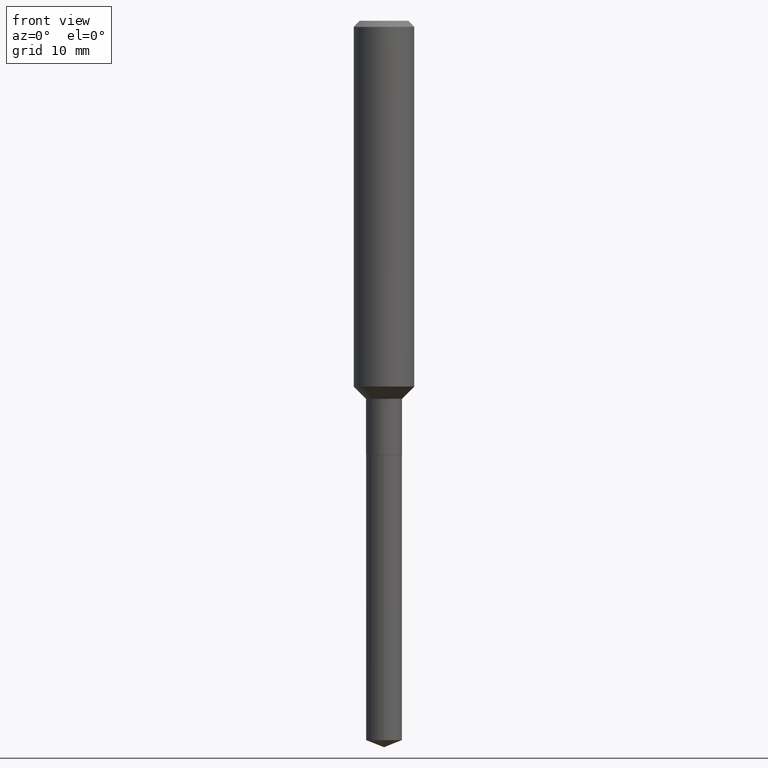
[diagram: clean part render]
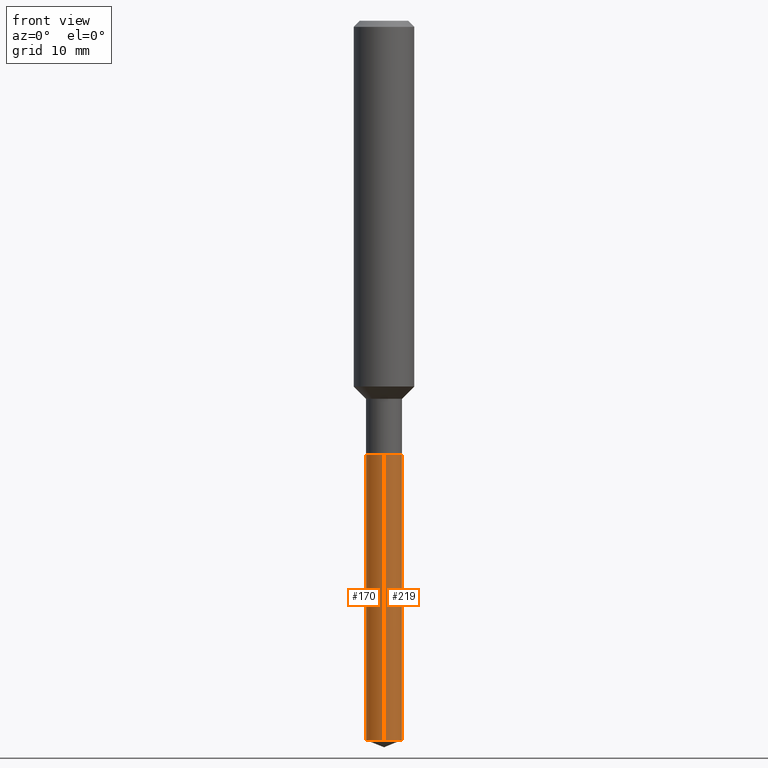
[diagram: same view with one multi-face feature highlighted, each face labeled with its STEP entity id]
A machine part, front view. The highlighted faces form ONE feature: a constant-radius fillet chain: 2 tangent blend faces with common blend radius 1.7856 mm. The faces share edges in the B-rep.
Their STEP definitions:
[1] entity #219 (Cylinder):
#2 = FACE_OUTER_BOUND ( 'NONE', #259, .T. ) ;
#6 = EDGE_CURVE ( 'NONE', #32, #282, #364, .T. ) ;
#21 = ORIENTED_EDGE ( 'NONE', *, *, #84, .T. ) ;
#32 = VERTEX_POINT ( 'NONE', #150 ) ;
#51 = CARTESIAN_POINT ( 'NONE',  ( -4.909022762413031377E-16, -0.07030000000000589944, -1.692899999999999627 ) ) ;
#69 = LINE ( 'NONE', #302, #404 ) ;
#74 = DIRECTION ( 'NONE',  ( -2.436575684604276326E-29, 3.504216795111983695E-15, 1.000000000000000000 ) ) ;
#79 = DIRECTION ( 'NONE',  ( -6.982962677686266711E-15, -1.000000000000000000, 3.885985766236505386E-15 ) ) ;
#84 = EDGE_CURVE ( 'NONE', #282, #455, #241, .T. ) ;
#95 = CARTESIAN_POINT ( 'NONE',  ( 4.139934141990817236E-29, -5.910728758527560286E-15, -1.692899999999999849 ) ) ;
#105 = DIRECTION ( 'NONE',  ( -6.982962677686266711E-15, -1.000000000000000000, 0.000000000000000000 ) ) ;
#117 = CARTESIAN_POINT ( 'NONE',  ( 4.995115432393917570E-16, 0.07029999999999410332, -1.692900000000000071 ) ) ;
#150 = CARTESIAN_POINT ( 'NONE',  ( -4.909022762412758234E-16, -0.07030000000000981297, -2.806908093564269624 ) ) ;
#156 = AXIS2_PLACEMENT_3D ( 'NONE', #371, #295, #105 ) ;
#178 = CARTESIAN_POINT ( 'NONE',  ( 4.995115432394192686E-16, 0.07029999999999410332, -1.692900000000000071 ) ) ;
#206 = CARTESIAN_POINT ( 'NONE',  ( 4.995115432394188741E-16, 0.07029999999999017590, -2.806908093564269624 ) ) ;
#209 = VERTEX_POINT ( 'NONE', #51 ) ;
#219 = ADVANCED_FACE ( 'NONE', ( #2 ), #456, .T. ) ;
#221 = VECTOR ( 'NONE', #459, 39.37007874015748143 ) ;
#241 = LINE ( 'NONE', #117, #221 ) ;
#253 = DIRECTION ( 'NONE',  ( -2.436575684604276326E-29, 3.504216795111983695E-15, 1.000000000000000000 ) ) ;
#259 = EDGE_LOOP ( 'NONE', ( #266, #21, #406, #268 ) ) ;
#261 = AXIS2_PLACEMENT_3D ( 'NONE', #95, #253, #476 ) ;
#266 = ORIENTED_EDGE ( 'NONE', *, *, #6, .T. ) ;
#268 = ORIENTED_EDGE ( 'NONE', *, *, #410, .F. ) ;
#271 = CARTESIAN_POINT ( 'NONE',  ( 4.139934141990817236E-29, -5.910728758527560286E-15, -1.692899999999999849 ) ) ;
#282 = VERTEX_POINT ( 'NONE', #206 ) ;
#295 = DIRECTION ( 'NONE',  ( -2.436575684604276326E-29, 3.504216795111983695E-15, 1.000000000000000000 ) ) ;
#302 = CARTESIAN_POINT ( 'NONE',  ( -4.909022762413032363E-16, -0.07030000000000591331, -1.692899999999999627 ) ) ;
#347 = EDGE_CURVE ( 'NONE', #209, #455, #474, .T. ) ;
#364 = CIRCLE ( 'NONE', #156, 0.07030000000000001525 ) ;
#371 = CARTESIAN_POINT ( 'NONE',  ( 6.854299175221882208E-29, -9.814454629886157032E-15, -2.806908093564269624 ) ) ;
#404 = VECTOR ( 'NONE', #74, 39.37007874015748143 ) ;
#406 = ORIENTED_EDGE ( 'NONE', *, *, #347, .F. ) ;
#410 = EDGE_CURVE ( 'NONE', #32, #209, #69, .T. ) ;
#424 = DIRECTION ( 'NONE',  ( -2.436575684604276326E-29, 3.504216795111983695E-15, 1.000000000000000000 ) ) ;
#431 = AXIS2_PLACEMENT_3D ( 'NONE', #271, #424, #79 ) ;
#455 = VERTEX_POINT ( 'NONE', #178 ) ;
#456 = CYLINDRICAL_SURFACE ( 'NONE', #431, 0.07030000000000000138 ) ;
#459 = DIRECTION ( 'NONE',  ( -2.436575684604276326E-29, 3.504216795111983695E-15, 1.000000000000000000 ) ) ;
#474 = CIRCLE ( 'NONE', #261, 0.07030000000000000138 ) ;
#476 = DIRECTION ( 'NONE',  ( -6.982962677686265133E-15, -1.000000000000000000, 3.885985766236505386E-15 ) ) ;
[2] entity #170 (Cylinder):
#5 = AXIS2_PLACEMENT_3D ( 'NONE', #252, #402, #288 ) ;
#26 = DIRECTION ( 'NONE',  ( -6.982962677686265133E-15, -1.000000000000000000, 3.885985766236505386E-15 ) ) ;
#32 = VERTEX_POINT ( 'NONE', #150 ) ;
#33 = ORIENTED_EDGE ( 'NONE', *, *, #483, .F. ) ;
#35 = EDGE_LOOP ( 'NONE', ( #233, #292, #333, #33 ) ) ;
#48 = DIRECTION ( 'NONE',  ( -6.982962677686266711E-15, -1.000000000000000000, 3.885985766236505386E-15 ) ) ;
#51 = CARTESIAN_POINT ( 'NONE',  ( -4.909022762413031377E-16, -0.07030000000000589944, -1.692899999999999627 ) ) ;
#69 = LINE ( 'NONE', #302, #404 ) ;
#70 = AXIS2_PLACEMENT_3D ( 'NONE', #388, #193, #48 ) ;
#74 = DIRECTION ( 'NONE',  ( -2.436575684604276326E-29, 3.504216795111983695E-15, 1.000000000000000000 ) ) ;
#84 = EDGE_CURVE ( 'NONE', #282, #455, #241, .T. ) ;
#117 = CARTESIAN_POINT ( 'NONE',  ( 4.995115432393917570E-16, 0.07029999999999410332, -1.692900000000000071 ) ) ;
#150 = CARTESIAN_POINT ( 'NONE',  ( -4.909022762412758234E-16, -0.07030000000000981297, -2.806908093564269624 ) ) ;
#170 = ADVANCED_FACE ( 'NONE', ( #245 ), #236, .T. ) ;
#178 = CARTESIAN_POINT ( 'NONE',  ( 4.995115432394192686E-16, 0.07029999999999410332, -1.692900000000000071 ) ) ;
#188 = CIRCLE ( 'NONE', #257, 0.07030000000000000138 ) ;
#193 = DIRECTION ( 'NONE',  ( -2.436575684604276326E-29, 3.504216795111983695E-15, 1.000000000000000000 ) ) ;
#206 = CARTESIAN_POINT ( 'NONE',  ( 4.995115432394188741E-16, 0.07029999999999017590, -2.806908093564269624 ) ) ;
#209 = VERTEX_POINT ( 'NONE', #51 ) ;
#221 = VECTOR ( 'NONE', #459, 39.37007874015748143 ) ;
#233 = ORIENTED_EDGE ( 'NONE', *, *, #84, .F. ) ;
#236 = CYLINDRICAL_SURFACE ( 'NONE', #70, 0.07030000000000000138 ) ;
#241 = LINE ( 'NONE', #117, #221 ) ;
#245 = FACE_OUTER_BOUND ( 'NONE', #35, .T. ) ;
#252 = CARTESIAN_POINT ( 'NONE',  ( 6.854299175221882208E-29, -9.814454629886157032E-15, -2.806908093564269624 ) ) ;
#257 = AXIS2_PLACEMENT_3D ( 'NONE', #362, #293, #26 ) ;
#262 = EDGE_CURVE ( 'NONE', #282, #32, #352, .T. ) ;
#282 = VERTEX_POINT ( 'NONE', #206 ) ;
#288 = DIRECTION ( 'NONE',  ( -6.982962677686266711E-15, -1.000000000000000000, 0.000000000000000000 ) ) ;
#292 = ORIENTED_EDGE ( 'NONE', *, *, #262, .T. ) ;
#293 = DIRECTION ( 'NONE',  ( -2.436575684604276326E-29, 3.504216795111983695E-15, 1.000000000000000000 ) ) ;
#302 = CARTESIAN_POINT ( 'NONE',  ( -4.909022762413032363E-16, -0.07030000000000591331, -1.692899999999999627 ) ) ;
#333 = ORIENTED_EDGE ( 'NONE', *, *, #410, .T. ) ;
#352 = CIRCLE ( 'NONE', #5, 0.07030000000000001525 ) ;
#362 = CARTESIAN_POINT ( 'NONE',  ( 4.139934141990817236E-29, -5.910728758527560286E-15, -1.692899999999999849 ) ) ;
#388 = CARTESIAN_POINT ( 'NONE',  ( 4.139934141990817236E-29, -5.910728758527560286E-15, -1.692899999999999849 ) ) ;
#402 = DIRECTION ( 'NONE',  ( -2.436575684604276326E-29, 3.504216795111983695E-15, 1.000000000000000000 ) ) ;
#404 = VECTOR ( 'NONE', #74, 39.37007874015748143 ) ;
#410 = EDGE_CURVE ( 'NONE', #32, #209, #69, .T. ) ;
#455 = VERTEX_POINT ( 'NONE', #178 ) ;
#459 = DIRECTION ( 'NONE',  ( -2.436575684604276326E-29, 3.504216795111983695E-15, 1.000000000000000000 ) ) ;
#483 = EDGE_CURVE ( 'NONE', #455, #209, #188, .T. ) ;